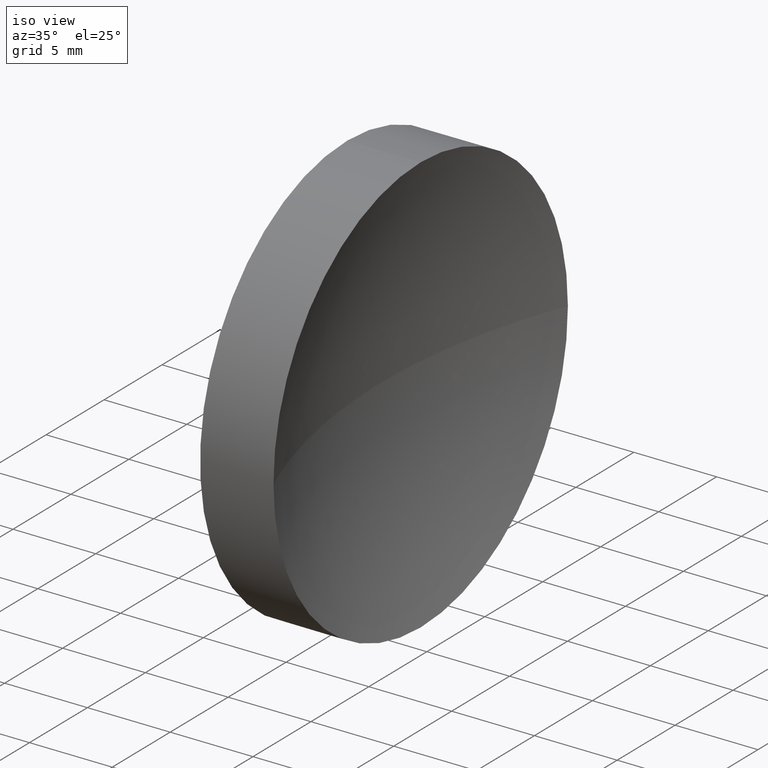
[diagram: clean part render]
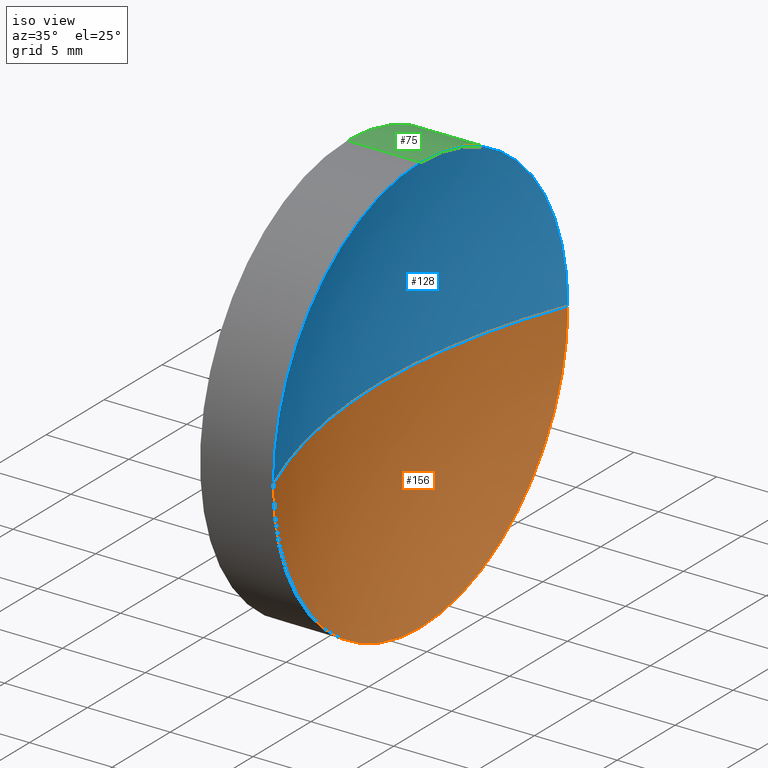
[diagram: same view with three faces highlighted in distinct colors, each labeled with its STEP entity id]
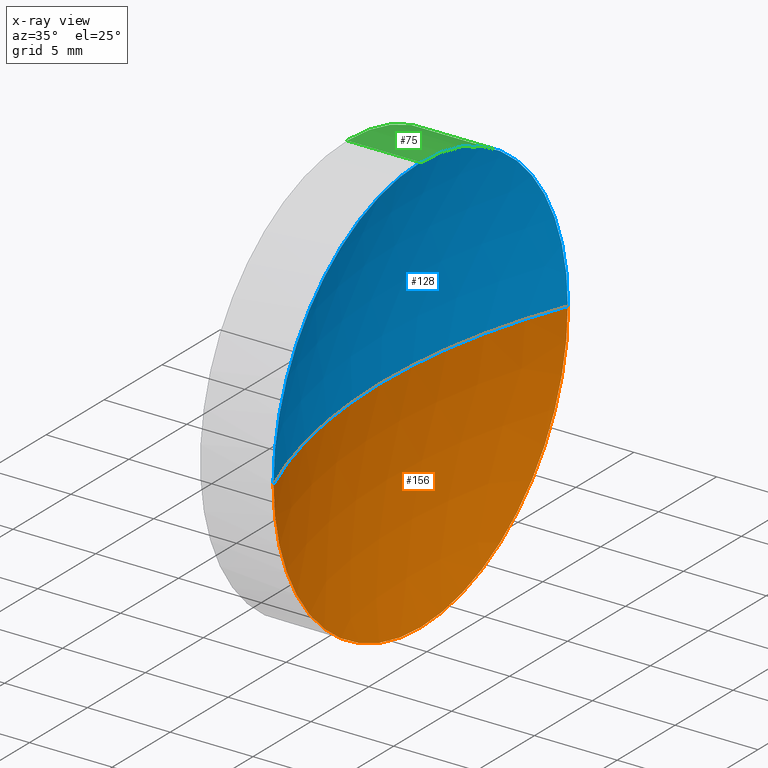
[diagram: x-ray of the same camera — body ghosted, the three highlighted faces saturated]
A machine part, iso view with three faces highlighted in distinct colors.
The next image is the same camera in x-ray (body ghosted, the three faces saturated) — at least one of them is partly hidden behind the body in this view.
Their STEP definitions:

[orange] entity #156 — the highlighted spherical surface has radius 34.39 mm.
#2 = CARTESIAN_POINT ( 'NONE',  ( 123.7938616566546800, 83.89398908659370600, 1.555301434917136700E-015 ) ) ;
#4 = ORIENTED_EDGE ( 'NONE', *, *, #28, .F. ) ;
#7 = VERTEX_POINT ( 'NONE', #57 ) ;
#13 = CARTESIAN_POINT ( 'NONE',  ( 155.7529307920347000, 71.19398908659371700, 0.0000000000000000000 ) ) ;
#17 = CIRCLE ( 'NONE', #76, 12.70000000000000300 ) ;
#22 = CIRCLE ( 'NONE', #131, 12.70000000000000300 ) ;
#28 = EDGE_CURVE ( 'NONE', #7, #118, #22, .T. ) ;
#40 = CARTESIAN_POINT ( 'NONE',  ( 121.3629307920347000, 71.19398908659371700, 0.0000000000000000000 ) ) ;
#43 = CIRCLE ( 'NONE', #130, 34.38999999999999300 ) ;
#44 = ORIENTED_EDGE ( 'NONE', *, *, #126, .T. ) ;
#49 = VERTEX_POINT ( 'NONE', #2 ) ;
#52 = CIRCLE ( 'NONE', #112, 34.38999999999999300 ) ;
#53 = DIRECTION ( 'NONE',  ( -1.000000000000000000, -0.0000000000000000000, -0.0000000000000000000 ) ) ;
#57 = CARTESIAN_POINT ( 'NONE',  ( 123.7938616566546800, 71.19398908659370300, -12.70000000000000300 ) ) ;
#68 = CARTESIAN_POINT ( 'NONE',  ( 123.7938616566546800, 71.19398908659370300, 0.0000000000000000000 ) ) ;
#71 = EDGE_LOOP ( 'NONE', ( #164, #44, #89, #4 ) ) ;
#76 = AXIS2_PLACEMENT_3D ( 'NONE', #68, #53, #81 ) ;
#77 = CARTESIAN_POINT ( 'NONE',  ( 155.7529307920347000, 71.19398908659371700, 0.0000000000000000000 ) ) ;
#80 = EDGE_CURVE ( 'NONE', #118, #154, #43, .T. ) ;
#81 = DIRECTION ( 'NONE',  ( 0.0000000000000000000, 0.0000000000000000000, 1.000000000000000000 ) ) ;
#88 = DIRECTION ( 'NONE',  ( -1.000000000000000000, -0.0000000000000000000, -0.0000000000000000000 ) ) ;
#89 = ORIENTED_EDGE ( 'NONE', *, *, #80, .F. ) ;
#90 = SPHERICAL_SURFACE ( 'NONE', #140, 34.38999999999999300 ) ;
#95 = DIRECTION ( 'NONE',  ( 0.0000000000000000000, -1.000000000000000000, -1.224646799147353000E-016 ) ) ;
#107 = DIRECTION ( 'NONE',  ( 0.0000000000000000000, -1.224646799147353200E-016, 1.000000000000000000 ) ) ;
#109 = EDGE_CURVE ( 'NONE', #49, #7, #17, .T. ) ;
#112 = AXIS2_PLACEMENT_3D ( 'NONE', #13, #107, #95 ) ;
#118 = VERTEX_POINT ( 'NONE', #169 ) ;
#124 = FACE_OUTER_BOUND ( 'NONE', #71, .T. ) ;
#126 = EDGE_CURVE ( 'NONE', #49, #154, #52, .T. ) ;
#130 = AXIS2_PLACEMENT_3D ( 'NONE', #184, #181, #185 ) ;
#131 = AXIS2_PLACEMENT_3D ( 'NONE', #176, #88, #157 ) ;
#140 = AXIS2_PLACEMENT_3D ( 'NONE', #77, #180, #152 ) ;
#152 = DIRECTION ( 'NONE',  ( 0.0000000000000000000, -1.000000000000000000, 0.0000000000000000000 ) ) ;
#154 = VERTEX_POINT ( 'NONE', #40 ) ;
#156 = ADVANCED_FACE ( 'NONE', ( #124 ), #90, .F. ) ;
#157 = DIRECTION ( 'NONE',  ( 0.0000000000000000000, 0.0000000000000000000, 1.000000000000000000 ) ) ;
#164 = ORIENTED_EDGE ( 'NONE', *, *, #109, .F. ) ;
#169 = CARTESIAN_POINT ( 'NONE',  ( 123.7938616566546800, 58.49398908659371400, 0.0000000000000000000 ) ) ;
#176 = CARTESIAN_POINT ( 'NONE',  ( 123.7938616566546800, 71.19398908659370300, 0.0000000000000000000 ) ) ;
#180 = DIRECTION ( 'NONE',  ( 0.0000000000000000000, 0.0000000000000000000, 1.000000000000000000 ) ) ;
#181 = DIRECTION ( 'NONE',  ( 0.0000000000000000000, 0.0000000000000000000, -1.000000000000000000 ) ) ;
#184 = CARTESIAN_POINT ( 'NONE',  ( 155.7529307920347000, 71.19398908659371700, 0.0000000000000000000 ) ) ;
#185 = DIRECTION ( 'NONE',  ( -1.000000000000000000, 0.0000000000000000000, 0.0000000000000000000 ) ) ;

[blue] entity #128 — the highlighted spherical surface has radius 34.39 mm.
#2 = CARTESIAN_POINT ( 'NONE',  ( 123.7938616566546800, 83.89398908659370600, 1.555301434917136700E-015 ) ) ;
#5 = SPHERICAL_SURFACE ( 'NONE', #38, 34.38999999999999300 ) ;
#9 = DIRECTION ( 'NONE',  ( -1.000000000000000000, -0.0000000000000000000, -0.0000000000000000000 ) ) ;
#11 = DIRECTION ( 'NONE',  ( 0.0000000000000000000, 0.0000000000000000000, 1.000000000000000000 ) ) ;
#13 = CARTESIAN_POINT ( 'NONE',  ( 155.7529307920347000, 71.19398908659371700, 0.0000000000000000000 ) ) ;
#25 = ORIENTED_EDGE ( 'NONE', *, *, #126, .F. ) ;
#27 = CARTESIAN_POINT ( 'NONE',  ( 155.7529307920347000, 71.19398908659371700, 0.0000000000000000000 ) ) ;
#30 = CARTESIAN_POINT ( 'NONE',  ( 123.7938616566546800, 71.19398908659370300, 12.70000000000000300 ) ) ;
#31 = DIRECTION ( 'NONE',  ( -1.000000000000000000, -0.0000000000000000000, -0.0000000000000000000 ) ) ;
#33 = CIRCLE ( 'NONE', #173, 12.70000000000000300 ) ;
#38 = AXIS2_PLACEMENT_3D ( 'NONE', #27, #120, #64 ) ;
#40 = CARTESIAN_POINT ( 'NONE',  ( 121.3629307920347000, 71.19398908659371700, 0.0000000000000000000 ) ) ;
#43 = CIRCLE ( 'NONE', #130, 34.38999999999999300 ) ;
#46 = CIRCLE ( 'NONE', #55, 12.70000000000000300 ) ;
#49 = VERTEX_POINT ( 'NONE', #2 ) ;
#52 = CIRCLE ( 'NONE', #112, 34.38999999999999300 ) ;
#55 = AXIS2_PLACEMENT_3D ( 'NONE', #78, #9, #138 ) ;
#58 = ORIENTED_EDGE ( 'NONE', *, *, #59, .F. ) ;
#59 = EDGE_CURVE ( 'NONE', #118, #163, #33, .T. ) ;
#64 = DIRECTION ( 'NONE',  ( 0.0000000000000000000, -1.000000000000000000, 0.0000000000000000000 ) ) ;
#78 = CARTESIAN_POINT ( 'NONE',  ( 123.7938616566546800, 71.19398908659370300, 0.0000000000000000000 ) ) ;
#80 = EDGE_CURVE ( 'NONE', #118, #154, #43, .T. ) ;
#84 = ORIENTED_EDGE ( 'NONE', *, *, #182, .F. ) ;
#94 = ORIENTED_EDGE ( 'NONE', *, *, #80, .T. ) ;
#95 = DIRECTION ( 'NONE',  ( 0.0000000000000000000, -1.000000000000000000, -1.224646799147353000E-016 ) ) ;
#107 = DIRECTION ( 'NONE',  ( 0.0000000000000000000, -1.224646799147353200E-016, 1.000000000000000000 ) ) ;
#112 = AXIS2_PLACEMENT_3D ( 'NONE', #13, #107, #95 ) ;
#118 = VERTEX_POINT ( 'NONE', #169 ) ;
#120 = DIRECTION ( 'NONE',  ( 0.0000000000000000000, 0.0000000000000000000, 1.000000000000000000 ) ) ;
#126 = EDGE_CURVE ( 'NONE', #49, #154, #52, .T. ) ;
#128 = ADVANCED_FACE ( 'NONE', ( #166 ), #5, .F. ) ;
#130 = AXIS2_PLACEMENT_3D ( 'NONE', #184, #181, #185 ) ;
#138 = DIRECTION ( 'NONE',  ( 0.0000000000000000000, 0.0000000000000000000, 1.000000000000000000 ) ) ;
#154 = VERTEX_POINT ( 'NONE', #40 ) ;
#158 = CARTESIAN_POINT ( 'NONE',  ( 123.7938616566546800, 71.19398908659370300, 0.0000000000000000000 ) ) ;
#163 = VERTEX_POINT ( 'NONE', #30 ) ;
#166 = FACE_OUTER_BOUND ( 'NONE', #183, .T. ) ;
#169 = CARTESIAN_POINT ( 'NONE',  ( 123.7938616566546800, 58.49398908659371400, 0.0000000000000000000 ) ) ;
#173 = AXIS2_PLACEMENT_3D ( 'NONE', #158, #31, #11 ) ;
#181 = DIRECTION ( 'NONE',  ( 0.0000000000000000000, 0.0000000000000000000, -1.000000000000000000 ) ) ;
#182 = EDGE_CURVE ( 'NONE', #163, #49, #46, .T. ) ;
#183 = EDGE_LOOP ( 'NONE', ( #25, #84, #58, #94 ) ) ;
#184 = CARTESIAN_POINT ( 'NONE',  ( 155.7529307920347000, 71.19398908659371700, 0.0000000000000000000 ) ) ;
#185 = DIRECTION ( 'NONE',  ( -1.000000000000000000, 0.0000000000000000000, 0.0000000000000000000 ) ) ;

[green] entity #75 — the highlighted cylindrical surface (partial cylindrical patch) has radius 12.7 mm, axis along (-1, -0, -0).
#2 = CARTESIAN_POINT ( 'NONE',  ( 123.7938616566546800, 83.89398908659370600, 1.555301434917136700E-015 ) ) ;
#7 = VERTEX_POINT ( 'NONE', #57 ) ;
#9 = DIRECTION ( 'NONE',  ( -1.000000000000000000, -0.0000000000000000000, -0.0000000000000000000 ) ) ;
#10 = LINE ( 'NONE', #165, #155 ) ;
#14 = DIRECTION ( 'NONE',  ( -1.000000000000000000, -0.0000000000000000000, -0.0000000000000000000 ) ) ;
#15 = VERTEX_POINT ( 'NONE', #159 ) ;
#17 = CIRCLE ( 'NONE', #76, 12.70000000000000300 ) ;
#18 = CARTESIAN_POINT ( 'NONE',  ( 111.9552297575605700, 71.19398908659370300, 0.0000000000000000000 ) ) ;
#23 = AXIS2_PLACEMENT_3D ( 'NONE', #18, #114, #144 ) ;
#26 = CARTESIAN_POINT ( 'NONE',  ( 111.9552297575605700, 71.19398908659370300, -12.70000000000000300 ) ) ;
#30 = CARTESIAN_POINT ( 'NONE',  ( 123.7938616566546800, 71.19398908659370300, 12.70000000000000300 ) ) ;
#36 = ORIENTED_EDGE ( 'NONE', *, *, #150, .T. ) ;
#41 = ORIENTED_EDGE ( 'NONE', *, *, #182, .T. ) ;
#45 = AXIS2_PLACEMENT_3D ( 'NONE', #54, #67, #167 ) ;
#46 = CIRCLE ( 'NONE', #55, 12.70000000000000300 ) ;
#49 = VERTEX_POINT ( 'NONE', #2 ) ;
#53 = DIRECTION ( 'NONE',  ( -1.000000000000000000, -0.0000000000000000000, -0.0000000000000000000 ) ) ;
#54 = CARTESIAN_POINT ( 'NONE',  ( 119.3629307920347200, 71.19398908659370300, 0.0000000000000000000 ) ) ;
#55 = AXIS2_PLACEMENT_3D ( 'NONE', #78, #9, #138 ) ;
#57 = CARTESIAN_POINT ( 'NONE',  ( 123.7938616566546800, 71.19398908659370300, -12.70000000000000300 ) ) ;
#62 = FACE_OUTER_BOUND ( 'NONE', #136, .T. ) ;
#67 = DIRECTION ( 'NONE',  ( -1.000000000000000000, -0.0000000000000000000, -0.0000000000000000000 ) ) ;
#68 = CARTESIAN_POINT ( 'NONE',  ( 123.7938616566546800, 71.19398908659370300, 0.0000000000000000000 ) ) ;
#75 = ADVANCED_FACE ( 'NONE', ( #62 ), #86, .T. ) ;
#76 = AXIS2_PLACEMENT_3D ( 'NONE', #68, #53, #81 ) ;
#78 = CARTESIAN_POINT ( 'NONE',  ( 123.7938616566546800, 71.19398908659370300, 0.0000000000000000000 ) ) ;
#79 = CIRCLE ( 'NONE', #45, 12.70000000000000300 ) ;
#81 = DIRECTION ( 'NONE',  ( 0.0000000000000000000, 0.0000000000000000000, 1.000000000000000000 ) ) ;
#86 = CYLINDRICAL_SURFACE ( 'NONE', #23, 12.70000000000000300 ) ;
#93 = DIRECTION ( 'NONE',  ( -1.000000000000000000, -0.0000000000000000000, -0.0000000000000000000 ) ) ;
#109 = EDGE_CURVE ( 'NONE', #49, #7, #17, .T. ) ;
#110 = CARTESIAN_POINT ( 'NONE',  ( 119.3629307920347200, 71.19398908659370300, 12.70000000000000300 ) ) ;
#113 = VECTOR ( 'NONE', #14, 1000.000000000000000 ) ;
#114 = DIRECTION ( 'NONE',  ( -1.000000000000000000, -0.0000000000000000000, -0.0000000000000000000 ) ) ;
#117 = ORIENTED_EDGE ( 'NONE', *, *, #109, .T. ) ;
#132 = VERTEX_POINT ( 'NONE', #110 ) ;
#136 = EDGE_LOOP ( 'NONE', ( #117, #36, #174, #160, #41 ) ) ;
#138 = DIRECTION ( 'NONE',  ( 0.0000000000000000000, 0.0000000000000000000, 1.000000000000000000 ) ) ;
#144 = DIRECTION ( 'NONE',  ( 0.0000000000000000000, 0.0000000000000000000, 1.000000000000000000 ) ) ;
#150 = EDGE_CURVE ( 'NONE', #7, #15, #151, .T. ) ;
#151 = LINE ( 'NONE', #26, #113 ) ;
#155 = VECTOR ( 'NONE', #93, 1000.000000000000000 ) ;
#159 = CARTESIAN_POINT ( 'NONE',  ( 119.3629307920347200, 71.19398908659370300, -12.70000000000000300 ) ) ;
#160 = ORIENTED_EDGE ( 'NONE', *, *, #168, .F. ) ;
#163 = VERTEX_POINT ( 'NONE', #30 ) ;
#165 = CARTESIAN_POINT ( 'NONE',  ( 111.9552297575605700, 71.19398908659370300, 12.70000000000000300 ) ) ;
#167 = DIRECTION ( 'NONE',  ( 0.0000000000000000000, 0.0000000000000000000, 1.000000000000000000 ) ) ;
#168 = EDGE_CURVE ( 'NONE', #163, #132, #10, .T. ) ;
#174 = ORIENTED_EDGE ( 'NONE', *, *, #179, .F. ) ;
#179 = EDGE_CURVE ( 'NONE', #132, #15, #79, .T. ) ;
#182 = EDGE_CURVE ( 'NONE', #163, #49, #46, .T. ) ;